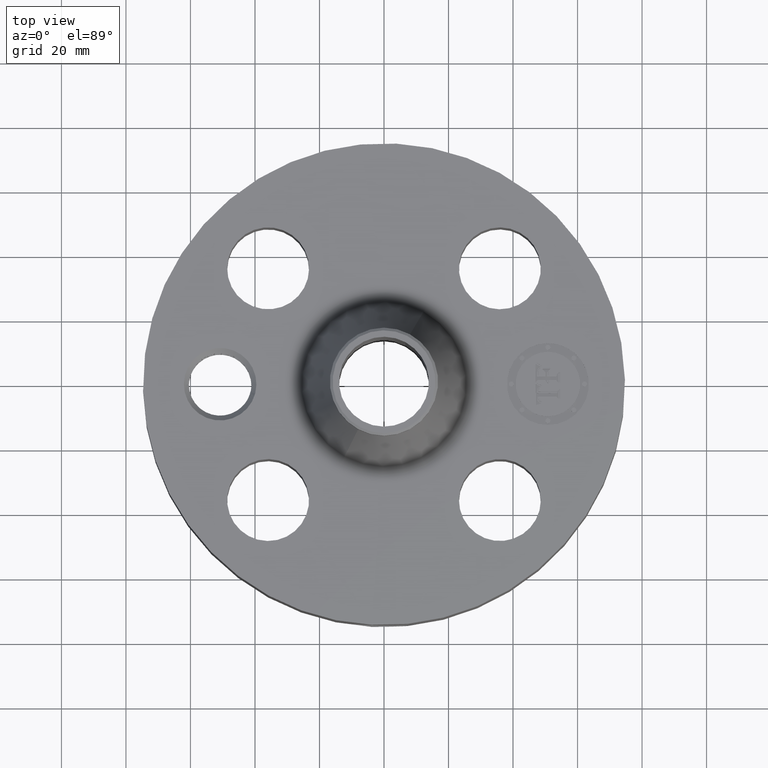
[diagram: clean part render]
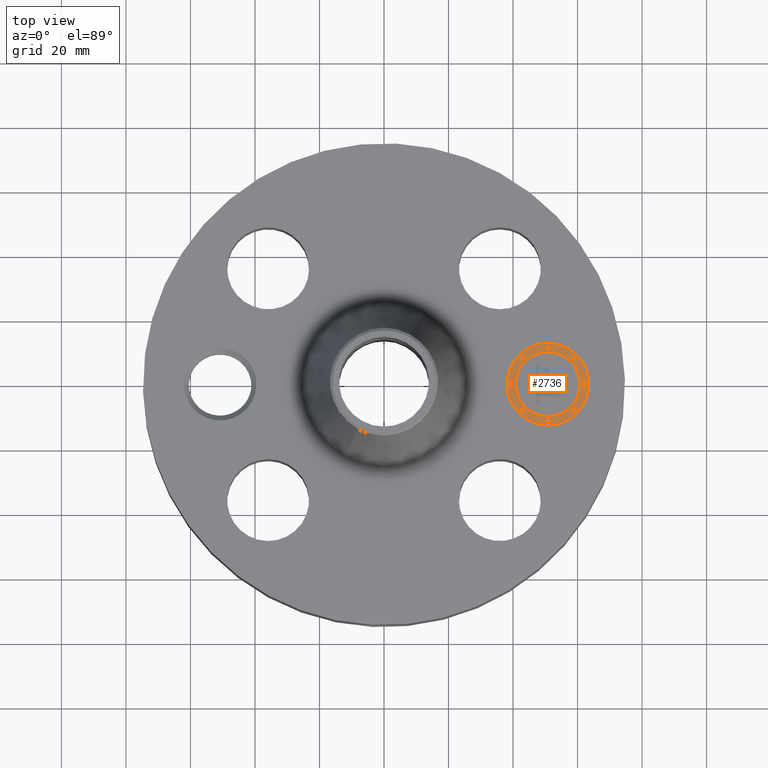
[diagram: same view with one face highlighted and labeled with its STEP entity id]
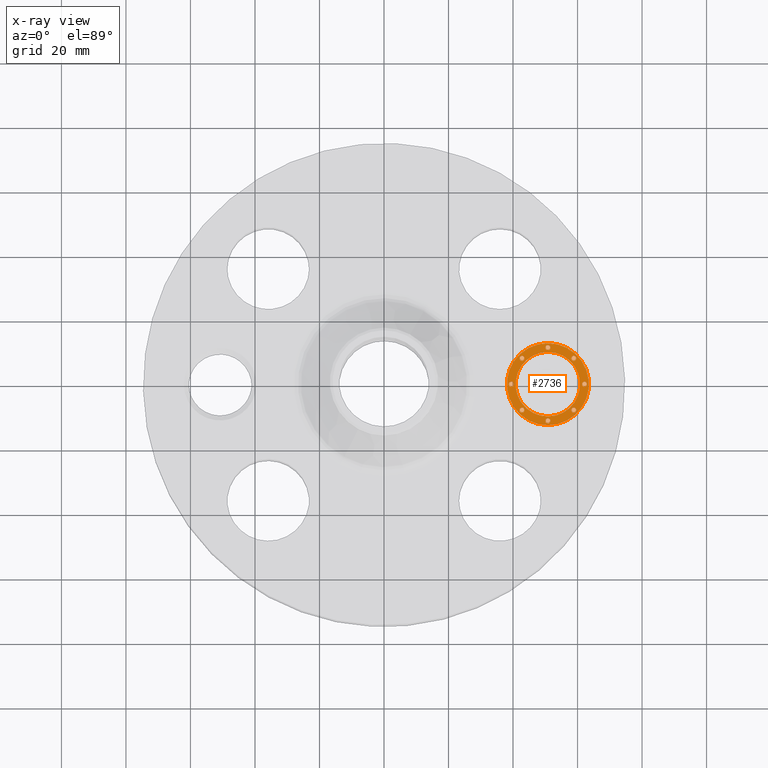
[diagram: x-ray of the same camera — body ghosted, the highlighted face saturated]
A machine part, top view. The second image highlights one B-rep face of the part: STEP entity #2736.
The next image is the same camera in x-ray: the body ghosted, the highlighted face saturated — about 0% of this face is hidden behind the body in this view.
In plain terms, the highlighted planar face has unit normal (0, 0, 1).
Its self-contained STEP definition (entity closure, byte-faithful):
#1895=AXIS2_PLACEMENT_3D('Circle Axis2P3D',#1893,#1894,$) ;
#1922=AXIS2_PLACEMENT_3D('Circle Axis2P3D',#1920,#1921,$) ;
#2568=AXIS2_PLACEMENT_3D('Plane Axis2P3D',#2565,#2566,#2567) ;
#2576=AXIS2_PLACEMENT_3D('Circle Axis2P3D',#2574,#2575,$) ;
#2585=AXIS2_PLACEMENT_3D('Circle Axis2P3D',#2583,#2584,$) ;
#2594=AXIS2_PLACEMENT_3D('Circle Axis2P3D',#2592,#2593,$) ;
#2603=AXIS2_PLACEMENT_3D('Circle Axis2P3D',#2601,#2602,$) ;
#2612=AXIS2_PLACEMENT_3D('Circle Axis2P3D',#2610,#2611,$) ;
#2621=AXIS2_PLACEMENT_3D('Circle Axis2P3D',#2619,#2620,$) ;
#2630=AXIS2_PLACEMENT_3D('Circle Axis2P3D',#2628,#2629,$) ;
#2639=AXIS2_PLACEMENT_3D('Circle Axis2P3D',#2637,#2638,$) ;
#2648=AXIS2_PLACEMENT_3D('Circle Axis2P3D',#2646,#2647,$) ;
#2657=AXIS2_PLACEMENT_3D('Circle Axis2P3D',#2655,#2656,$) ;
#2666=AXIS2_PLACEMENT_3D('Circle Axis2P3D',#2664,#2665,$) ;
#2675=AXIS2_PLACEMENT_3D('Circle Axis2P3D',#2673,#2674,$) ;
#2684=AXIS2_PLACEMENT_3D('Circle Axis2P3D',#2682,#2683,$) ;
#2693=AXIS2_PLACEMENT_3D('Circle Axis2P3D',#2691,#2692,$) ;
#2702=AXIS2_PLACEMENT_3D('Circle Axis2P3D',#2700,#2701,$) ;
#2711=AXIS2_PLACEMENT_3D('Circle Axis2P3D',#2709,#2710,$) ;
#2720=AXIS2_PLACEMENT_3D('Circle Axis2P3D',#2718,#2719,$) ;
#2729=AXIS2_PLACEMENT_3D('Circle Axis2P3D',#2727,#2728,$) ;
#1890=CARTESIAN_POINT('Vertex',(2.00000000001,-0.499999995002,1.73500000001)) ;
#1893=CARTESIAN_POINT('Axis2P3D Location',(2.00000000001,-5.00689401085E-015,1.73500000001)) ;
#1897=CARTESIAN_POINT('Vertex',(2.00000000001,0.499999995002,1.73500000001)) ;
#1920=CARTESIAN_POINT('Axis2P3D Location',(2.00000000001,-5.00689401085E-015,1.73500000001)) ;
#2565=CARTESIAN_POINT('Axis2P3D Location',(0.,0.,1.73500000001)) ;
#2574=CARTESIAN_POINT('Axis2P3D Location',(2.00000000001,-5.00689401085E-015,1.73500000001)) ;
#2578=CARTESIAN_POINT('Vertex',(2.00000000001,-0.393939390002,1.73500000001)) ;
#2580=CARTESIAN_POINT('Vertex',(2.00000000001,0.393939390002,1.73500000001)) ;
#2583=CARTESIAN_POINT('Axis2P3D Location',(2.00000000001,-5.00689401085E-015,1.73500000001)) ;
#2592=CARTESIAN_POINT('Axis2P3D Location',(1.55303030751,-6.27844506428E-015,1.73500000001)) ;
#2596=CARTESIAN_POINT('Vertex',(1.55303030751,-0.0303030300001,1.73500000001)) ;
#2598=CARTESIAN_POINT('Vertex',(1.55303030751,0.0303030300001,1.73500000001)) ;
#2601=CARTESIAN_POINT('Axis2P3D Location',(1.55303030751,-6.27844506428E-015,1.73500000001)) ;
#2610=CARTESIAN_POINT('Axis2P3D Location',(2.00000000001,0.446969692502,1.73500000001)) ;
#2614=CARTESIAN_POINT('Vertex',(2.00000000001,0.416666662502,1.73500000001)) ;
#2616=CARTESIAN_POINT('Vertex',(2.00000000001,0.477272722502,1.73500000001)) ;
#2619=CARTESIAN_POINT('Axis2P3D Location',(2.00000000001,0.446969692502,1.73500000001)) ;
#2628=CARTESIAN_POINT('Axis2P3D Location',(1.68394469946,0.316055300553,1.73500000001)) ;
#2632=CARTESIAN_POINT('Vertex',(1.68394469946,0.285752270553,1.73500000001)) ;
#2634=CARTESIAN_POINT('Vertex',(1.68394469946,0.346358330553,1.73500000001)) ;
#2637=CARTESIAN_POINT('Axis2P3D Location',(1.68394469946,0.316055300553,1.73500000001)) ;
#2646=CARTESIAN_POINT('Axis2P3D Location',(2.44696969251,6.71963237075E-015,1.73500000001)) ;
#2650=CARTESIAN_POINT('Vertex',(2.44696969251,-0.0303030300001,1.73500000001)) ;
#2652=CARTESIAN_POINT('Vertex',(2.44696969251,0.0303030300001,1.73500000001)) ;
#2655=CARTESIAN_POINT('Axis2P3D Location',(2.44696969251,6.71963237075E-015,1.73500000001)) ;
#2664=CARTESIAN_POINT('Axis2P3D Location',(2.31605530056,0.316055300553,1.73500000001)) ;
#2668=CARTESIAN_POINT('Vertex',(2.31605530056,0.285752270553,1.73500000001)) ;
#2670=CARTESIAN_POINT('Vertex',(2.31605530056,0.346358330553,1.73500000001)) ;
#2673=CARTESIAN_POINT('Axis2P3D Location',(2.31605530056,0.316055300553,1.73500000001)) ;
#2682=CARTESIAN_POINT('Axis2P3D Location',(2.00000000001,-0.446969692502,1.73500000001)) ;
#2686=CARTESIAN_POINT('Vertex',(2.00000000001,-0.416666662502,1.73500000001)) ;
#2688=CARTESIAN_POINT('Vertex',(2.00000000001,-0.477272722502,1.73500000001)) ;
#2691=CARTESIAN_POINT('Axis2P3D Location',(2.00000000001,-0.446969692502,1.73500000001)) ;
#2700=CARTESIAN_POINT('Axis2P3D Location',(1.68394469946,-0.316055300553,1.73500000001)) ;
#2704=CARTESIAN_POINT('Vertex',(1.68394469946,-0.285752270553,1.73500000001)) ;
#2706=CARTESIAN_POINT('Vertex',(1.68394469946,-0.346358330553,1.73500000001)) ;
#2709=CARTESIAN_POINT('Axis2P3D Location',(1.68394469946,-0.316055300553,1.73500000001)) ;
#2718=CARTESIAN_POINT('Axis2P3D Location',(2.31605530056,-0.316055300553,1.73500000001)) ;
#2722=CARTESIAN_POINT('Vertex',(2.31605530056,-0.285752270553,1.73500000001)) ;
#2724=CARTESIAN_POINT('Vertex',(2.31605530056,-0.346358330553,1.73500000001)) ;
#2727=CARTESIAN_POINT('Axis2P3D Location',(2.31605530056,-0.316055300553,1.73500000001)) ;
#1894=DIRECTION('Axis2P3D Direction',(0.,0.,0.0393700787402)) ;
#1921=DIRECTION('Axis2P3D Direction',(0.,0.,0.0393700787402)) ;
#2566=DIRECTION('Axis2P3D Direction',(0.,0.,0.0393700787402)) ;
#2567=DIRECTION('Axis2P3D XDirection',(0.0393700787402,0.,0.)) ;
#2575=DIRECTION('Axis2P3D Direction',(0.,0.,0.0393700787402)) ;
#2584=DIRECTION('Axis2P3D Direction',(0.,0.,0.0393700787402)) ;
#2593=DIRECTION('Axis2P3D Direction',(0.,0.,0.0393700787402)) ;
#2602=DIRECTION('Axis2P3D Direction',(0.,0.,0.0393700787402)) ;
#2611=DIRECTION('Axis2P3D Direction',(0.,0.,0.0393700787402)) ;
#2620=DIRECTION('Axis2P3D Direction',(0.,0.,0.0393700787402)) ;
#2629=DIRECTION('Axis2P3D Direction',(0.,0.,0.0393700787402)) ;
#2638=DIRECTION('Axis2P3D Direction',(0.,0.,0.0393700787402)) ;
#2647=DIRECTION('Axis2P3D Direction',(0.,0.,0.0393700787402)) ;
#2656=DIRECTION('Axis2P3D Direction',(0.,0.,0.0393700787402)) ;
#2665=DIRECTION('Axis2P3D Direction',(0.,0.,0.0393700787402)) ;
#2674=DIRECTION('Axis2P3D Direction',(0.,0.,0.0393700787402)) ;
#2683=DIRECTION('Axis2P3D Direction',(0.,0.,0.0393700787402)) ;
#2692=DIRECTION('Axis2P3D Direction',(0.,0.,0.0393700787402)) ;
#2701=DIRECTION('Axis2P3D Direction',(0.,0.,0.0393700787402)) ;
#2710=DIRECTION('Axis2P3D Direction',(0.,0.,0.0393700787402)) ;
#2719=DIRECTION('Axis2P3D Direction',(0.,0.,0.0393700787402)) ;
#2728=DIRECTION('Axis2P3D Direction',(0.,0.,0.0393700787402)) ;
#2571=ORIENTED_EDGE('',*,*,#1899,.T.) ;
#2572=ORIENTED_EDGE('',*,*,#1924,.T.) ;
#2589=ORIENTED_EDGE('',*,*,#2582,.F.) ;
#2590=ORIENTED_EDGE('',*,*,#2587,.F.) ;
#2607=ORIENTED_EDGE('',*,*,#2600,.F.) ;
#2608=ORIENTED_EDGE('',*,*,#2605,.F.) ;
#2625=ORIENTED_EDGE('',*,*,#2618,.F.) ;
#2626=ORIENTED_EDGE('',*,*,#2623,.F.) ;
#2643=ORIENTED_EDGE('',*,*,#2636,.F.) ;
#2644=ORIENTED_EDGE('',*,*,#2641,.F.) ;
#2661=ORIENTED_EDGE('',*,*,#2654,.F.) ;
#2662=ORIENTED_EDGE('',*,*,#2659,.F.) ;
#2679=ORIENTED_EDGE('',*,*,#2672,.F.) ;
#2680=ORIENTED_EDGE('',*,*,#2677,.F.) ;
#2697=ORIENTED_EDGE('',*,*,#2690,.F.) ;
#2698=ORIENTED_EDGE('',*,*,#2695,.F.) ;
#2715=ORIENTED_EDGE('',*,*,#2708,.F.) ;
#2716=ORIENTED_EDGE('',*,*,#2713,.F.) ;
#2733=ORIENTED_EDGE('',*,*,#2726,.F.) ;
#2734=ORIENTED_EDGE('',*,*,#2731,.F.) ;
#2591=FACE_BOUND('',#2588,.T.) ;
#2609=FACE_BOUND('',#2606,.T.) ;
#2627=FACE_BOUND('',#2624,.T.) ;
#2645=FACE_BOUND('',#2642,.T.) ;
#2663=FACE_BOUND('',#2660,.T.) ;
#2681=FACE_BOUND('',#2678,.T.) ;
#2699=FACE_BOUND('',#2696,.T.) ;
#2717=FACE_BOUND('',#2714,.T.) ;
#2735=FACE_BOUND('',#2732,.T.) ;
#2736=ADVANCED_FACE('PartBody',(#2573,#2591,#2609,#2627,#2645,#2663,#2681,#2699,#2717,#2735),#2569,.T.) ;
#1896=CIRCLE('generated circle',#1895,0.499999995002) ;
#1923=CIRCLE('generated circle',#1922,0.499999995002) ;
#2577=CIRCLE('generated circle',#2576,0.393939390002) ;
#2586=CIRCLE('generated circle',#2585,0.393939390002) ;
#2595=CIRCLE('generated circle',#2594,0.0303030300001) ;
#2604=CIRCLE('generated circle',#2603,0.0303030300001) ;
#2613=CIRCLE('generated circle',#2612,0.0303030300001) ;
#2622=CIRCLE('generated circle',#2621,0.0303030300001) ;
#2631=CIRCLE('generated circle',#2630,0.0303030300001) ;
#2640=CIRCLE('generated circle',#2639,0.0303030300001) ;
#2649=CIRCLE('generated circle',#2648,0.0303030300001) ;
#2658=CIRCLE('generated circle',#2657,0.0303030300001) ;
#2667=CIRCLE('generated circle',#2666,0.0303030300001) ;
#2676=CIRCLE('generated circle',#2675,0.0303030300001) ;
#2685=CIRCLE('generated circle',#2684,0.0303030300001) ;
#2694=CIRCLE('generated circle',#2693,0.0303030300001) ;
#2703=CIRCLE('generated circle',#2702,0.0303030300001) ;
#2712=CIRCLE('generated circle',#2711,0.0303030300001) ;
#2721=CIRCLE('generated circle',#2720,0.0303030300001) ;
#2730=CIRCLE('generated circle',#2729,0.0303030300001) ;
#1899=EDGE_CURVE('',#1898,#1891,#1896,.T.) ;
#1924=EDGE_CURVE('',#1891,#1898,#1923,.T.) ;
#2582=EDGE_CURVE('',#2579,#2581,#2577,.T.) ;
#2587=EDGE_CURVE('',#2581,#2579,#2586,.T.) ;
#2600=EDGE_CURVE('',#2597,#2599,#2595,.T.) ;
#2605=EDGE_CURVE('',#2599,#2597,#2604,.T.) ;
#2618=EDGE_CURVE('',#2615,#2617,#2613,.T.) ;
#2623=EDGE_CURVE('',#2617,#2615,#2622,.T.) ;
#2636=EDGE_CURVE('',#2633,#2635,#2631,.T.) ;
#2641=EDGE_CURVE('',#2635,#2633,#2640,.T.) ;
#2654=EDGE_CURVE('',#2651,#2653,#2649,.T.) ;
#2659=EDGE_CURVE('',#2653,#2651,#2658,.T.) ;
#2672=EDGE_CURVE('',#2669,#2671,#2667,.T.) ;
#2677=EDGE_CURVE('',#2671,#2669,#2676,.T.) ;
#2690=EDGE_CURVE('',#2687,#2689,#2685,.T.) ;
#2695=EDGE_CURVE('',#2689,#2687,#2694,.T.) ;
#2708=EDGE_CURVE('',#2705,#2707,#2703,.T.) ;
#2713=EDGE_CURVE('',#2707,#2705,#2712,.T.) ;
#2726=EDGE_CURVE('',#2723,#2725,#2721,.T.) ;
#2731=EDGE_CURVE('',#2725,#2723,#2730,.T.) ;
#2570=EDGE_LOOP('',(#2571,#2572)) ;
#2588=EDGE_LOOP('',(#2589,#2590)) ;
#2606=EDGE_LOOP('',(#2607,#2608)) ;
#2624=EDGE_LOOP('',(#2625,#2626)) ;
#2642=EDGE_LOOP('',(#2643,#2644)) ;
#2660=EDGE_LOOP('',(#2661,#2662)) ;
#2678=EDGE_LOOP('',(#2679,#2680)) ;
#2696=EDGE_LOOP('',(#2697,#2698)) ;
#2714=EDGE_LOOP('',(#2715,#2716)) ;
#2732=EDGE_LOOP('',(#2733,#2734)) ;
#2573=FACE_OUTER_BOUND('',#2570,.T.) ;
#2569=PLANE('',#2568) ;
#1891=VERTEX_POINT('',#1890) ;
#1898=VERTEX_POINT('',#1897) ;
#2579=VERTEX_POINT('',#2578) ;
#2581=VERTEX_POINT('',#2580) ;
#2597=VERTEX_POINT('',#2596) ;
#2599=VERTEX_POINT('',#2598) ;
#2615=VERTEX_POINT('',#2614) ;
#2617=VERTEX_POINT('',#2616) ;
#2633=VERTEX_POINT('',#2632) ;
#2635=VERTEX_POINT('',#2634) ;
#2651=VERTEX_POINT('',#2650) ;
#2653=VERTEX_POINT('',#2652) ;
#2669=VERTEX_POINT('',#2668) ;
#2671=VERTEX_POINT('',#2670) ;
#2687=VERTEX_POINT('',#2686) ;
#2689=VERTEX_POINT('',#2688) ;
#2705=VERTEX_POINT('',#2704) ;
#2707=VERTEX_POINT('',#2706) ;
#2723=VERTEX_POINT('',#2722) ;
#2725=VERTEX_POINT('',#2724) ;